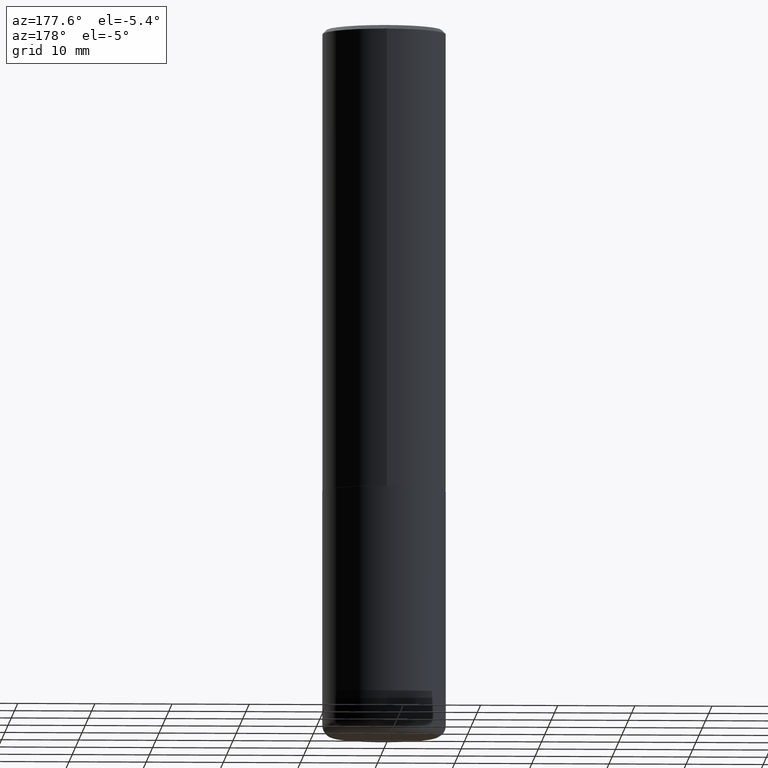
[diagram: clean part render]
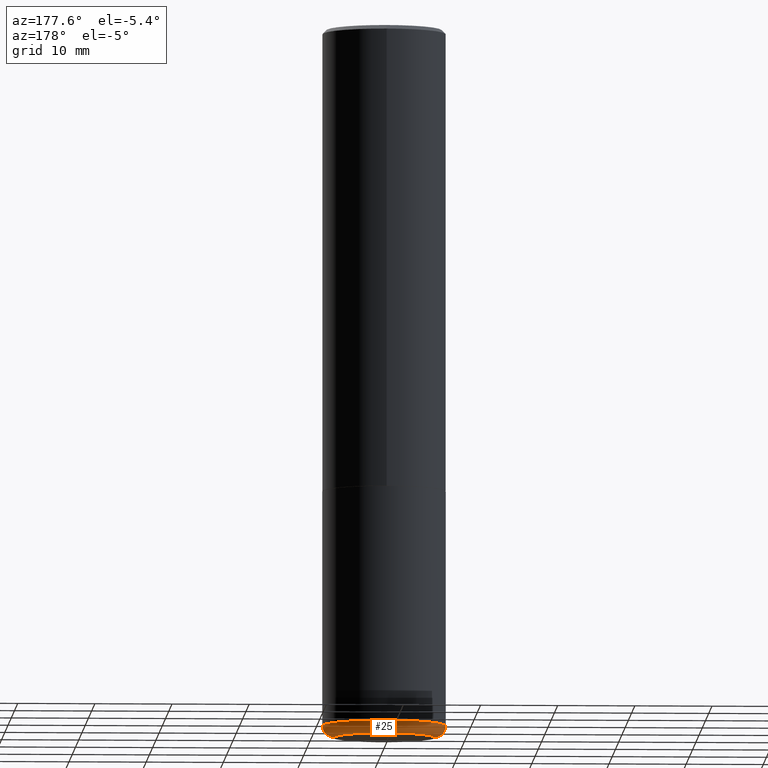
[diagram: same view with one face highlighted and labeled with its STEP entity id]
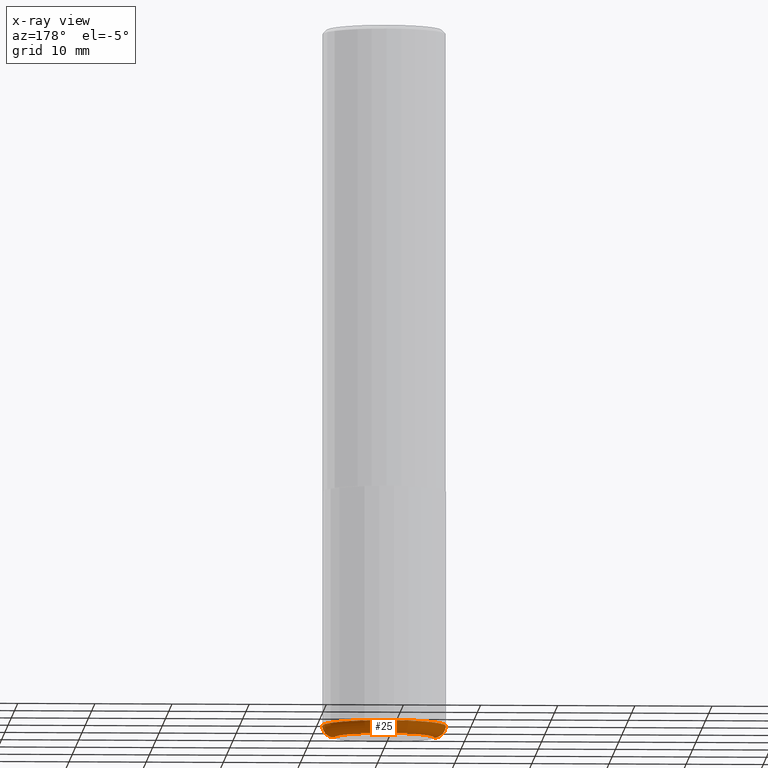
[diagram: x-ray of the same camera — body ghosted, the highlighted face saturated]
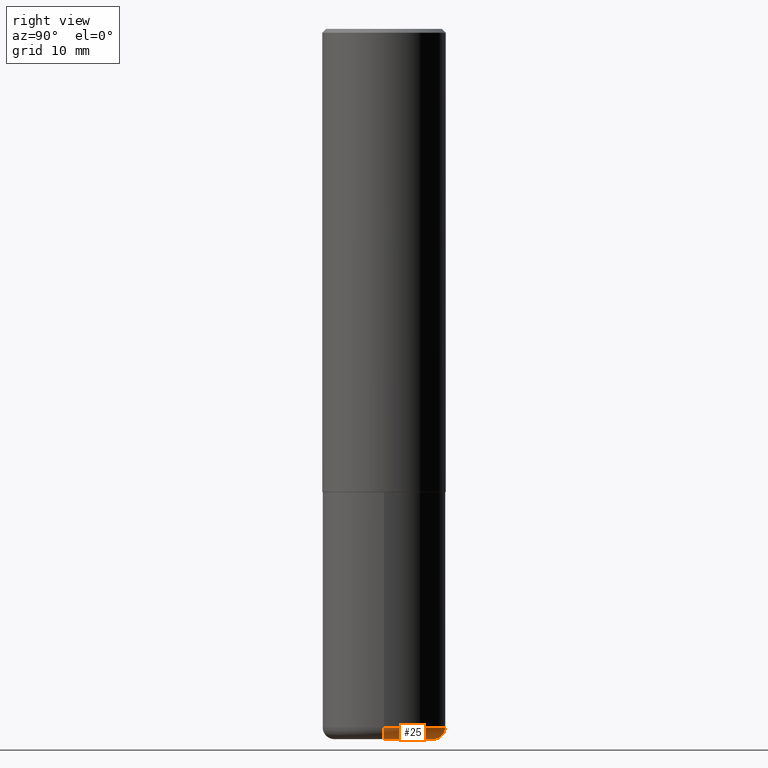
[diagram: same view with one face highlighted and labeled with its STEP entity id]
A machine part, auxiliary view. The second image highlights one B-rep face of the part: STEP entity #25.
The next image is the same camera in x-ray: the body ghosted, the highlighted face saturated — about 0% of this face is hidden behind the body in this view.
A second angle (right view) of the same face is appended — the face is thin or edge-on in the first view.
In plain terms, the highlighted toroidal blend (fillet) surface has major radius 6.4808 mm and minor (blend) radius 1.5189 mm.
Its self-contained STEP definition (entity closure, byte-faithful):
#13 = ORIENTED_EDGE ( 'NONE', *, *, #243, .T. ) ;
#25 = ADVANCED_FACE ( 'NONE', ( #405 ), #182, .T. ) ;
#26 = AXIS2_PLACEMENT_3D ( 'NONE', #38, #72, #326 ) ;
#33 = AXIS2_PLACEMENT_3D ( 'NONE', #263, #393, #100 ) ;
#38 = CARTESIAN_POINT ( 'NONE',  ( 0.2551499999999999879, -1.421905775243870271E-14, -3.562199999999999367 ) ) ;
#53 = ORIENTED_EDGE ( 'NONE', *, *, #232, .F. ) ;
#55 = CARTESIAN_POINT ( 'NONE',  ( -0.2551499999999999879, -1.051634804897429637E-14, -3.621999999999999886 ) ) ;
#62 = CIRCLE ( 'NONE', #26, 0.05980000000000013777 ) ;
#72 = DIRECTION ( 'NONE',  ( -6.982962677686266711E-15, -1.000000000000000000, 3.491481338843145583E-15 ) ) ;
#81 = DIRECTION ( 'NONE',  ( -2.445468806185136597E-29, 3.491481338843145583E-15, 1.000000000000000000 ) ) ;
#83 = ORIENTED_EDGE ( 'NONE', *, *, #384, .F. ) ;
#100 = DIRECTION ( 'NONE',  ( 1.000000000000000000, -6.982962677686268288E-15, 0.000000000000000000 ) ) ;
#101 = VERTEX_POINT ( 'NONE', #188 ) ;
#102 = DIRECTION ( 'NONE',  ( 1.000000000000000000, -6.982962677686268288E-15, 0.000000000000000000 ) ) ;
#112 = VERTEX_POINT ( 'NONE', #284 ) ;
#130 = VERTEX_POINT ( 'NONE', #55 ) ;
#176 = VERTEX_POINT ( 'NONE', #255 ) ;
#182 = TOROIDAL_SURFACE ( 'NONE', #372, 0.2551499999999999879, 0.05980000000000017246 ) ;
#188 = CARTESIAN_POINT ( 'NONE',  ( -0.3149500000000001743, -1.019950047895061313E-14, -3.562199999999999367 ) ) ;
#210 = DIRECTION ( 'NONE',  ( 1.000000000000000000, -6.982962677686266711E-15, 4.883557194083112901E-29 ) ) ;
#232 = EDGE_CURVE ( 'NONE', #176, #112, #62, .T. ) ;
#237 = CARTESIAN_POINT ( 'NONE',  ( 8.857488016002564476E-29, -1.264614540928987199E-14, -3.621999999999999886 ) ) ;
#243 = EDGE_CURVE ( 'NONE', #176, #130, #396, .T. ) ;
#244 = DIRECTION ( 'NONE',  ( -1.000000000000000000, 7.105427357601017636E-15, 0.000000000000000000 ) ) ;
#247 = CARTESIAN_POINT ( 'NONE',  ( 8.711248981392691651E-29, -1.243735482522705070E-14, -3.562199999999999367 ) ) ;
#255 = CARTESIAN_POINT ( 'NONE',  ( 0.2551499999999999879, -1.442784833650152243E-14, -3.621999999999999886 ) ) ;
#258 = AXIS2_PLACEMENT_3D ( 'NONE', #237, #359, #102 ) ;
#263 = CARTESIAN_POINT ( 'NONE',  ( 8.711248981392691651E-29, -1.243735482522705070E-14, -3.562199999999999367 ) ) ;
#265 = EDGE_LOOP ( 'NONE', ( #13, #366, #83, #53 ) ) ;
#266 = CIRCLE ( 'NONE', #33, 0.3149500000000000632 ) ;
#279 = DIRECTION ( 'NONE',  ( 7.105427357601001859E-15, 1.000000000000000000, -3.491481338843145583E-15 ) ) ;
#284 = CARTESIAN_POINT ( 'NONE',  ( 0.3149500000000001743, -1.463663892056434215E-14, -3.562199999999999367 ) ) ;
#326 = DIRECTION ( 'NONE',  ( 1.000000000000000000, -6.982962677686261189E-15, 0.000000000000000000 ) ) ;
#359 = DIRECTION ( 'NONE',  ( -2.445468806185136597E-29, 3.491481338843145583E-15, 1.000000000000000000 ) ) ;
#366 = ORIENTED_EDGE ( 'NONE', *, *, #417, .T. ) ;
#372 = AXIS2_PLACEMENT_3D ( 'NONE', #247, #81, #210 ) ;
#379 = CARTESIAN_POINT ( 'NONE',  ( -0.2551499999999999879, -1.062440503493515516E-14, -3.562199999999999367 ) ) ;
#384 = EDGE_CURVE ( 'NONE', #112, #101, #266, .T. ) ;
#387 = CIRCLE ( 'NONE', #418, 0.05980000000000013777 ) ;
#393 = DIRECTION ( 'NONE',  ( -2.445468806185136597E-29, 3.491481338843145583E-15, 1.000000000000000000 ) ) ;
#396 = CIRCLE ( 'NONE', #258, 0.2551499999999999879 ) ;
#405 = FACE_OUTER_BOUND ( 'NONE', #265, .T. ) ;
#417 = EDGE_CURVE ( 'NONE', #130, #101, #387, .T. ) ;
#418 = AXIS2_PLACEMENT_3D ( 'NONE', #379, #279, #244 ) ;